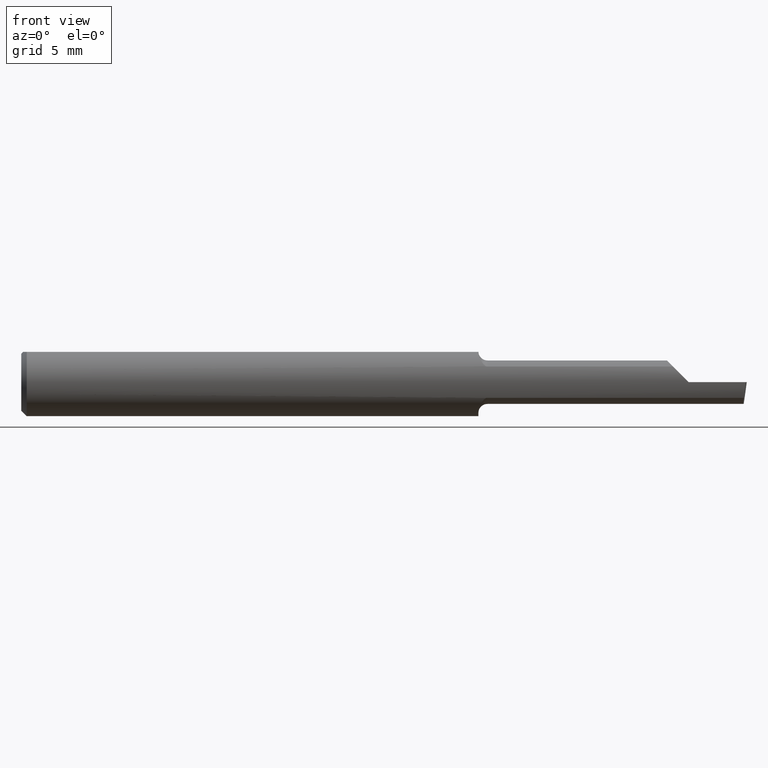
[diagram: clean part render]
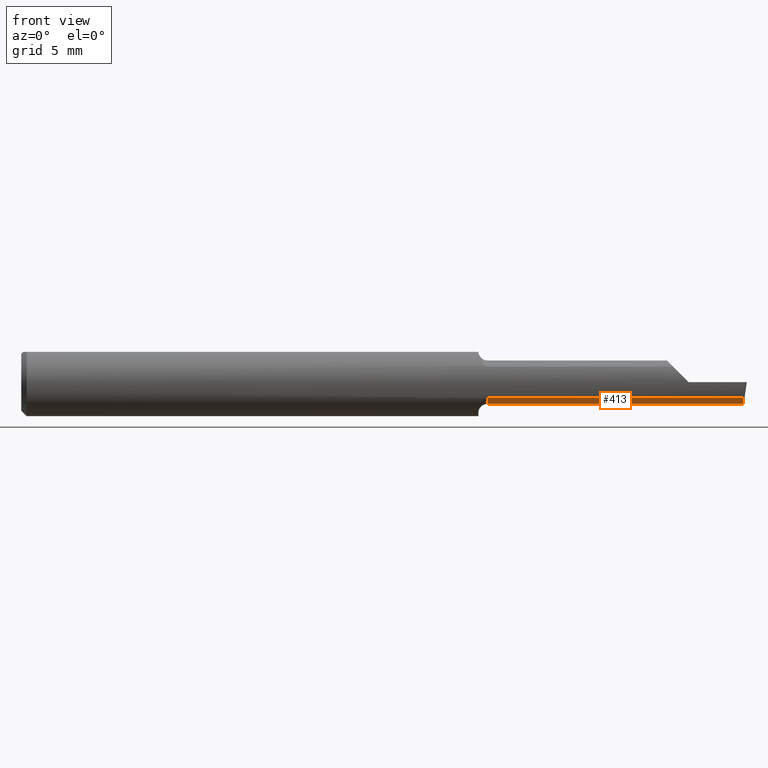
[diagram: same view with one face highlighted and labeled with its STEP entity id]
A machine part, front view. The second image highlights one B-rep face of the part: STEP entity #413.
In plain terms, the highlighted cylindrical surface (edge-blend (fillet) strip) has radius 1.5215 mm, axis along (-1, -0, -0).
Its self-contained STEP definition (entity closure, byte-faithful):
#6 = CARTESIAN_POINT ( 'NONE',  ( 1.990393312970557327, -0.04150000000000000216, -0.05990000000000000185 ) ) ;
#16 = DIRECTION ( 'NONE',  ( -1.000000000000000000, -0.0000000000000000000, -0.0000000000000000000 ) ) ;
#20 = CARTESIAN_POINT ( 'NONE',  ( 1.989982066092358393, -0.05720488466914004644, -0.05989999999999997410 ) ) ;
#27 = CARTESIAN_POINT ( 'NONE',  ( 2.000000000000000000, -0.04150000000000000216, -0.05990000000000000185 ) ) ;
#34 = CARTESIAN_POINT ( 'NONE',  ( 1.569999999999999840, -0.08307469879518077083, -0.04312255117789288994 ) ) ;
#62 = VERTEX_POINT ( 'NONE', #74 ) ;
#69 = CARTESIAN_POINT ( 'NONE',  ( 0.0000000000000000000, -0.04149999999999999523, -0.05989999999999997410 ) ) ;
#70 =( BOUNDED_CURVE ( )  B_SPLINE_CURVE ( 3, ( #669, #231, #20, #6 ),
 .UNSPECIFIED., .F., .T. ) 
 B_SPLINE_CURVE_WITH_KNOTS ( ( 4, 4 ),
 ( 5.726109673675772171, 6.493234751459700860 ),
 .UNSPECIFIED. ) 
 CURVE ( )  GEOMETRIC_REPRESENTATION_ITEM ( )  RATIONAL_B_SPLINE_CURVE ( ( 1.000000000000000000, 0.9515582177473689285, 0.9515582177473689285, 1.000000000000000000 ) ) 
 REPRESENTATION_ITEM ( '' )  );
#74 = CARTESIAN_POINT ( 'NONE',  ( 1.854999999999999982, -0.04150000000000000216, -0.05990000000000000185 ) ) ;
#79 = DIRECTION ( 'NONE',  ( -1.000000000000000000, -0.0000000000000000000, -0.0000000000000000000 ) ) ;
#108 = LINE ( 'NONE', #27, #695 ) ;
#111 = VERTEX_POINT ( 'NONE', #591 ) ;
#115 = CARTESIAN_POINT ( 'NONE',  ( 0.0000000000000000000, -0.04150000000000000216, 0.0000000000000000000 ) ) ;
#122 = ORIENTED_EDGE ( 'NONE', *, *, #658, .T. ) ;
#128 = CARTESIAN_POINT ( 'NONE',  ( 1.990393312970557327, -0.04150000000000000216, -0.05990000000000000185 ) ) ;
#139 = VERTEX_POINT ( 'NONE', #261 ) ;
#193 = EDGE_CURVE ( 'NONE', #409, #62, #108, .T. ) ;
#202 = AXIS2_PLACEMENT_3D ( 'NONE', #241, #247, #254 ) ;
#209 = DIRECTION ( 'NONE',  ( -1.000000000000000000, -0.0000000000000000000, -0.0000000000000000000 ) ) ;
#226 = AXIS2_PLACEMENT_3D ( 'NONE', #115, #16, #327 ) ;
#231 = CARTESIAN_POINT ( 'NONE',  ( 1.990322576363892759, -0.07176861043311236199, -0.05402281578110740973 ) ) ;
#236 = EDGE_CURVE ( 'NONE', #356, #139, #324, .T. ) ;
#241 = CARTESIAN_POINT ( 'NONE',  ( 1.284999999999999920, -0.04150000000000000216, 0.0000000000000000000 ) ) ;
#247 = DIRECTION ( 'NONE',  ( -1.000000000000000000, -0.0000000000000000000, -0.0000000000000000000 ) ) ;
#252 = ORIENTED_EDGE ( 'NONE', *, *, #268, .F. ) ;
#254 = DIRECTION ( 'NONE',  ( 0.0000000000000000000, 0.0000000000000000000, 1.000000000000000000 ) ) ;
#261 = CARTESIAN_POINT ( 'NONE',  ( 1.284999999999999920, -0.08307469879518065980, -0.04312255117789294545 ) ) ;
#268 = EDGE_CURVE ( 'NONE', #111, #409, #70, .T. ) ;
#324 = CIRCLE ( 'NONE', #202, 0.05989999999999993940 ) ;
#327 = DIRECTION ( 'NONE',  ( 0.0000000000000000000, 0.0000000000000000000, 1.000000000000000000 ) ) ;
#328 = VECTOR ( 'NONE', #209, 39.37007874015748143 ) ;
#356 = VERTEX_POINT ( 'NONE', #630 ) ;
#409 = VERTEX_POINT ( 'NONE', #128 ) ;
#413 = ADVANCED_FACE ( 'NONE', ( #487 ), #553, .T. ) ;
#460 = ORIENTED_EDGE ( 'NONE', *, *, #193, .F. ) ;
#475 = EDGE_CURVE ( 'NONE', #62, #356, #564, .T. ) ;
#487 = FACE_OUTER_BOUND ( 'NONE', #714, .T. ) ;
#494 = ORIENTED_EDGE ( 'NONE', *, *, #475, .F. ) ;
#553 = CYLINDRICAL_SURFACE ( 'NONE', #226, 0.05989999999999997410 ) ;
#564 = LINE ( 'NONE', #69, #644 ) ;
#587 = DIRECTION ( 'NONE',  ( -1.000000000000000000, 5.691349986800549142E-18, -0.0000000000000000000 ) ) ;
#591 = CARTESIAN_POINT ( 'NONE',  ( 1.991365359011875169, -0.08307469879518077083, -0.04312255117789288994 ) ) ;
#601 = ORIENTED_EDGE ( 'NONE', *, *, #236, .F. ) ;
#630 = CARTESIAN_POINT ( 'NONE',  ( 1.284999999999999920, -0.04149999999999999523, -0.05989999999999993940 ) ) ;
#644 = VECTOR ( 'NONE', #79, 39.37007874015748143 ) ;
#658 = EDGE_CURVE ( 'NONE', #111, #139, #698, .T. ) ;
#669 = CARTESIAN_POINT ( 'NONE',  ( 1.991365359011875169, -0.08307469879518077083, -0.04312255117789288994 ) ) ;
#695 = VECTOR ( 'NONE', #587, 39.37007874015748143 ) ;
#698 = LINE ( 'NONE', #34, #328 ) ;
#714 = EDGE_LOOP ( 'NONE', ( #494, #460, #252, #122, #601 ) ) ;